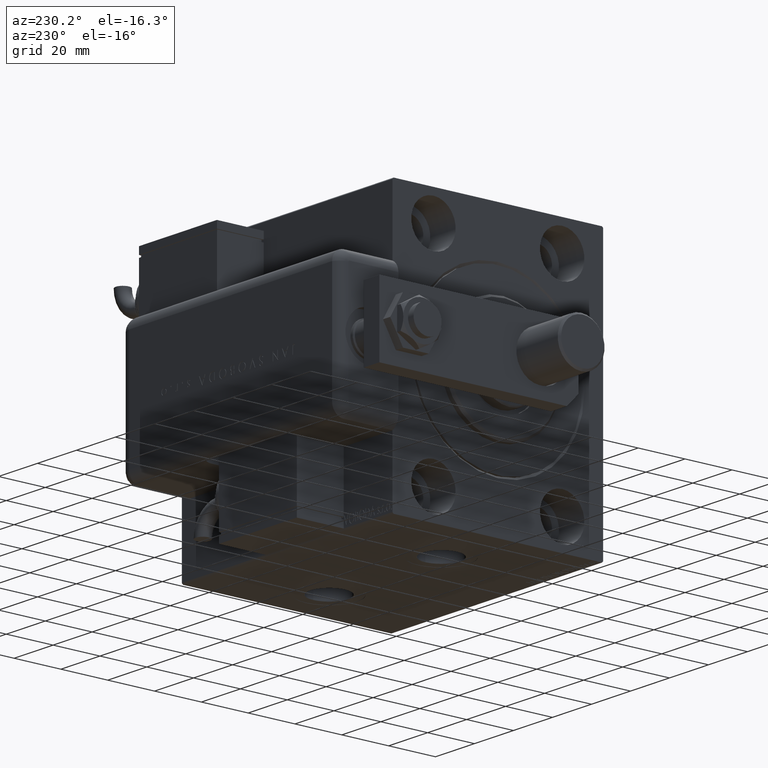
[diagram: clean part render]
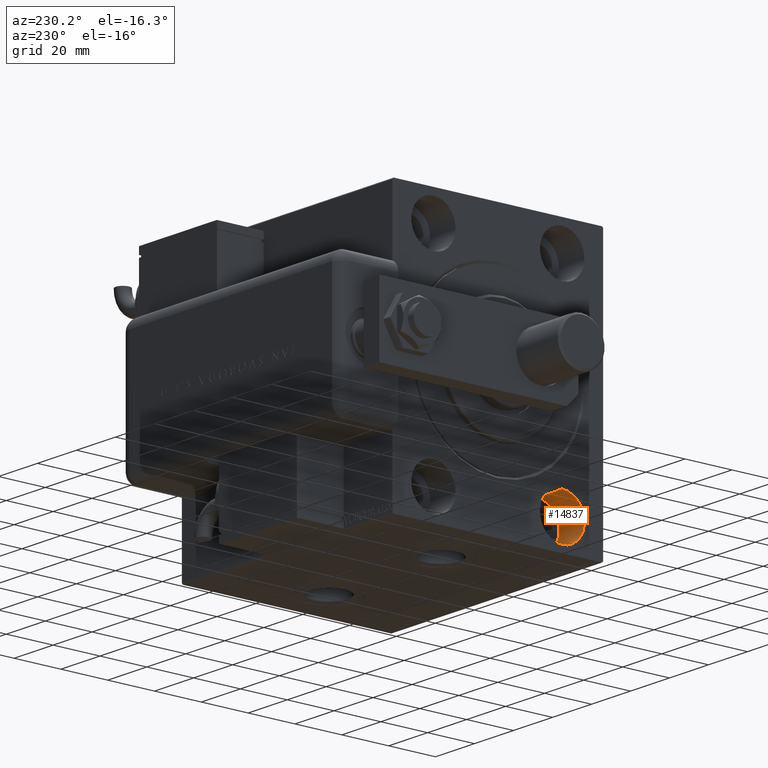
[diagram: same view with one face highlighted and labeled with its STEP entity id]
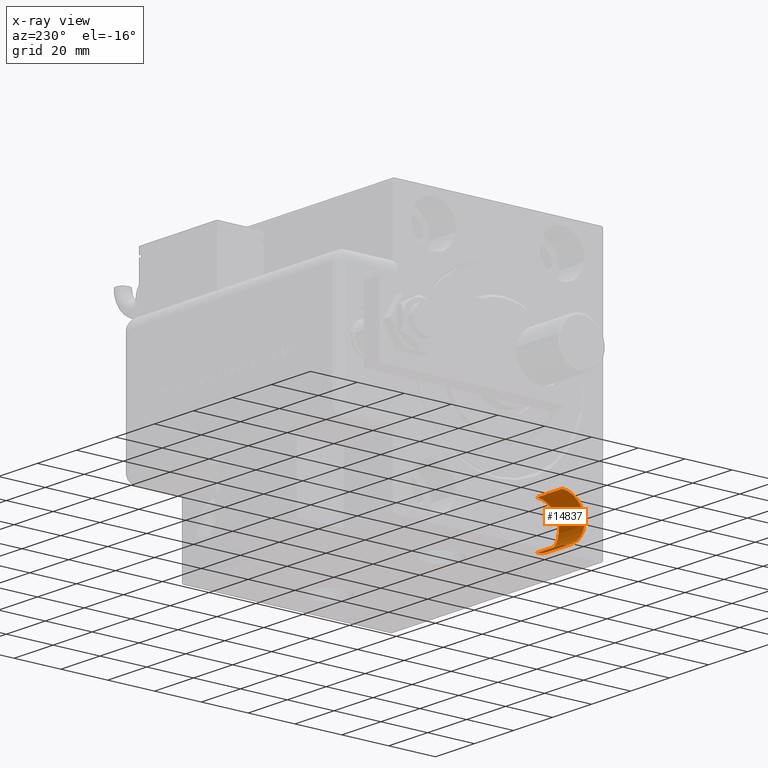
[diagram: x-ray of the same camera — body ghosted, the highlighted face saturated]
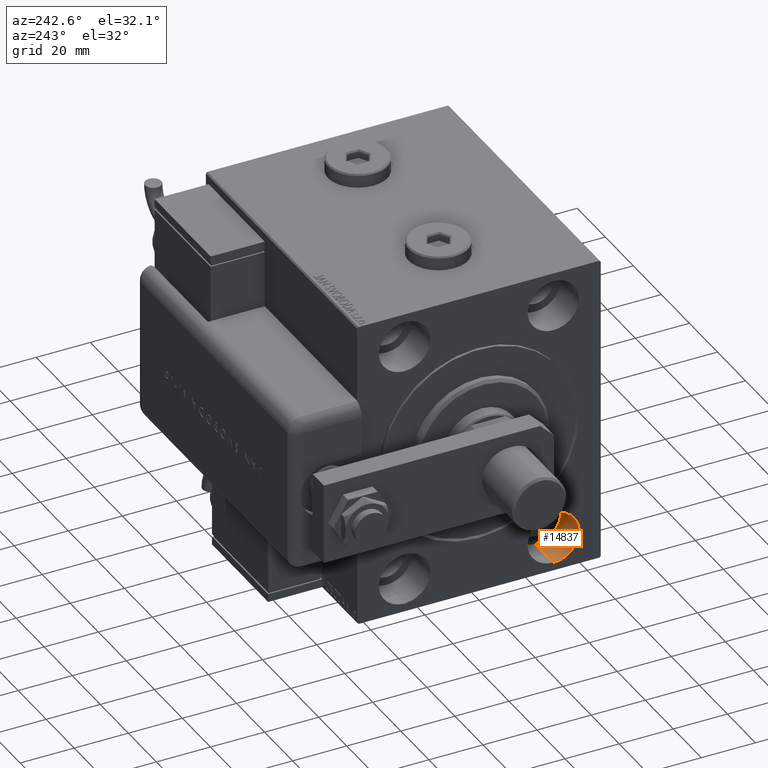
[diagram: same view with one face highlighted and labeled with its STEP entity id]
A machine part, auxiliary view. The second image highlights one B-rep face of the part: STEP entity #14837.
The next image is the same camera in x-ray: the body ghosted, the highlighted face saturated — about 0% of this face is hidden behind the body in this view.
A second angle (auxiliary view) of the same face is appended — the face is thin or edge-on in the first view.
In plain terms, the highlighted cylindrical surface (edge-blend (fillet) strip) has radius 9.5 mm, axis along (-1, -0, -0).
Its self-contained STEP definition (entity closure, byte-faithful):
#859 = LINE ( 'NONE', #1175, #26005 ) ;
#1175 = CARTESIAN_POINT ( 'NONE',  ( 13.00000000000000000, -27.50000000000000000, -54.49999999999998579 ) ) ;
#1470 = ORIENTED_EDGE ( 'NONE', *, *, #31442, .T. ) ;
#4579 = DIRECTION ( 'NONE',  ( -1.000000000000000000, 0.000000000000000000, 0.000000000000000000 ) ) ;
#8145 = CARTESIAN_POINT ( 'NONE',  ( 13.00000000000000000, -27.50000000000000000, -35.49999999999998579 ) ) ;
#9950 = VERTEX_POINT ( 'NONE', #39857 ) ;
#11513 = EDGE_CURVE ( 'NONE', #29823, #9950, #14794, .T. ) ;
#12156 = ORIENTED_EDGE ( 'NONE', *, *, #11513, .F. ) ;
#14794 = CIRCLE ( 'NONE', #30699, 9.500000000000001776 ) ;
#14837 = ADVANCED_FACE ( 'NONE', ( #54209 ), #25541, .F. ) ;
#16129 = EDGE_CURVE ( 'NONE', #9950, #30973, #55483, .T. ) ;
#16844 = CARTESIAN_POINT ( 'NONE',  ( 0.000000000000000000, -27.50000000000000000, -44.99999999999998579 ) ) ;
#19599 = EDGE_LOOP ( 'NONE', ( #12156, #60958, #1470, #32280 ) ) ;
#21561 = VECTOR ( 'NONE', #60748, 1000.000000000000000 ) ;
#23559 = CARTESIAN_POINT ( 'NONE',  ( 13.00000000000000000, -27.50000000000000000, -44.99999999999998579 ) ) ;
#25541 = CYLINDRICAL_SURFACE ( 'NONE', #46727, 9.500000000000001776 ) ;
#25850 = DIRECTION ( 'NONE',  ( -1.000000000000000000, -0.000000000000000000, -0.000000000000000000 ) ) ;
#26005 = VECTOR ( 'NONE', #47867, 1000.000000000000000 ) ;
#26678 = CARTESIAN_POINT ( 'NONE',  ( 13.00000000000000000, -27.50000000000000000, -54.49999999999998579 ) ) ;
#29823 = VERTEX_POINT ( 'NONE', #26678 ) ;
#30006 = CIRCLE ( 'NONE', #43914, 9.500000000000001776 ) ;
#30699 = AXIS2_PLACEMENT_3D ( 'NONE', #23559, #4579, #51899 ) ;
#30973 = VERTEX_POINT ( 'NONE', #38189 ) ;
#31442 = EDGE_CURVE ( 'NONE', #42107, #30973, #30006, .T. ) ;
#31769 = EDGE_CURVE ( 'NONE', #29823, #42107, #859, .T. ) ;
#32280 = ORIENTED_EDGE ( 'NONE', *, *, #16129, .F. ) ;
#34365 = CARTESIAN_POINT ( 'NONE',  ( 0.000000000000000000, -27.50000000000000000, -54.49999999999998579 ) ) ;
#38189 = CARTESIAN_POINT ( 'NONE',  ( 0.000000000000000000, -27.50000000000000000, -35.49999999999998579 ) ) ;
#39857 = CARTESIAN_POINT ( 'NONE',  ( 13.00000000000000000, -27.50000000000000000, -35.49999999999998579 ) ) ;
#42107 = VERTEX_POINT ( 'NONE', #34365 ) ;
#43914 = AXIS2_PLACEMENT_3D ( 'NONE', #16844, #54838, #50147 ) ;
#45146 = DIRECTION ( 'NONE',  ( 0.000000000000000000, 0.000000000000000000, 1.000000000000000000 ) ) ;
#46727 = AXIS2_PLACEMENT_3D ( 'NONE', #59782, #25850, #45146 ) ;
#47867 = DIRECTION ( 'NONE',  ( -1.000000000000000000, -0.000000000000000000, -0.000000000000000000 ) ) ;
#50147 = DIRECTION ( 'NONE',  ( 0.000000000000000000, 0.000000000000000000, 1.000000000000000000 ) ) ;
#51899 = DIRECTION ( 'NONE',  ( 0.000000000000000000, 0.000000000000000000, 1.000000000000000000 ) ) ;
#54209 = FACE_OUTER_BOUND ( 'NONE', #19599, .T. ) ;
#54838 = DIRECTION ( 'NONE',  ( -1.000000000000000000, 0.000000000000000000, 0.000000000000000000 ) ) ;
#55483 = LINE ( 'NONE', #8145, #21561 ) ;
#59782 = CARTESIAN_POINT ( 'NONE',  ( 13.00000000000000000, -27.50000000000000000, -44.99999999999998579 ) ) ;
#60748 = DIRECTION ( 'NONE',  ( -1.000000000000000000, -0.000000000000000000, -0.000000000000000000 ) ) ;
#60958 = ORIENTED_EDGE ( 'NONE', *, *, #31769, .T. ) ;